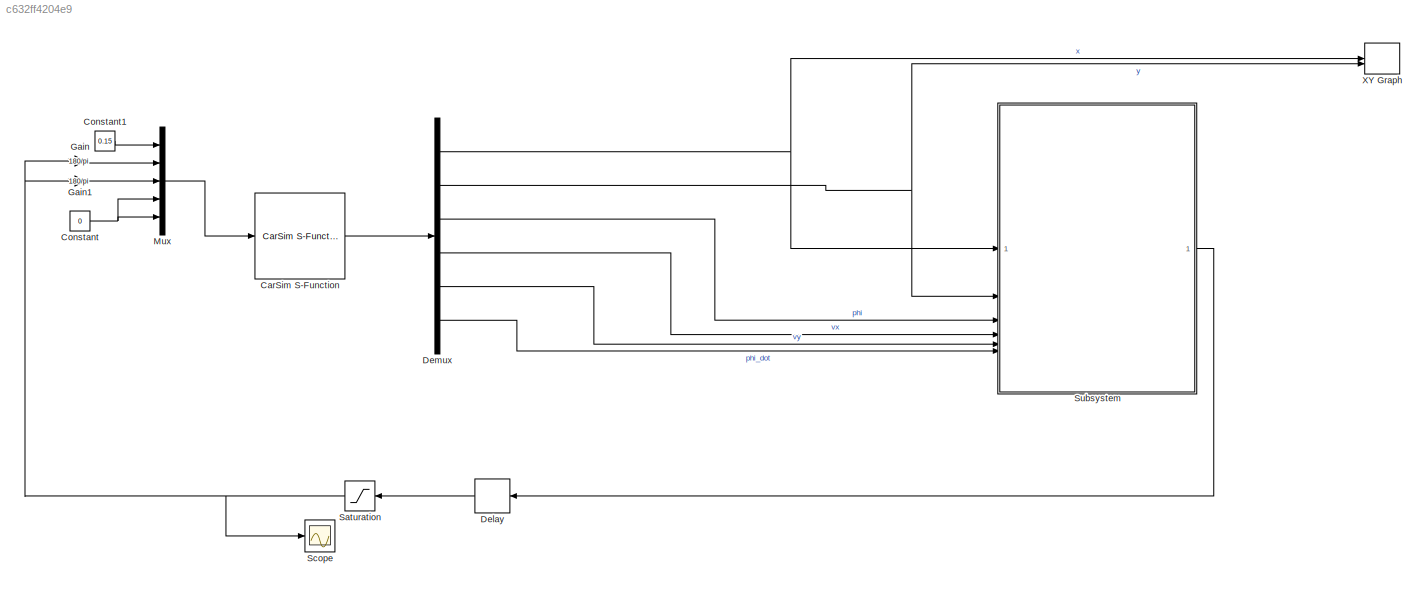
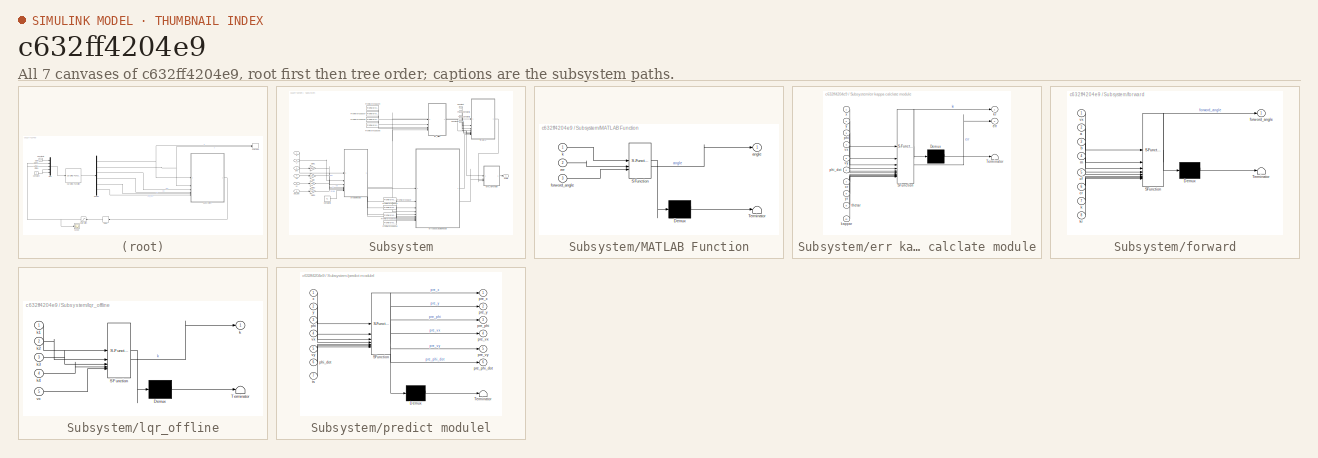
[diagram: thumbnail index - all 7 canvases of the model, root first then tree order]
MODEL slx_c632ff4204e9
KIND model
CONFIG AbsTol = auto
CONFIG EnableMultiTasking = off
CONFIG FixedStep = auto
CONFIG MaxStep = auto
CONFIG MinStep = auto
CONFIG RelTol = 1e-3
CONFIG SampleTimeConstraint = Unconstrained
CONFIG SolverName = VariableStepAuto
CONFIG StartTime = 0.0
CONFIG StopTime = 50
BLOCK [Reference] CarSim S-Function  REF=Solver_SF/CarSim S-Function
  Priority = 1
  SourceBlock = Solver_SF/CarSim S-Function
  SourceProductName = CarSim S-Function
  SourceType = Vehicle math model library
BLOCK [Constant] Constant
  Value = 0
BLOCK [Constant] Constant1
  Value = 0.15
BLOCK [Delay] Delay
  DelayLength = 1
  InputPortMap = u0
BLOCK [Demux] Demux
  Outputs = 6
BLOCK [Gain] Gain
  Gain = 180/pi
BLOCK [Gain] Gain1
  Gain = 180/pi
BLOCK [Mux] Mux
  DisplayOption = bar
  Inputs = 5
BLOCK [Saturate] Saturation
  LowerLimit = -1
  UpperLimit = 1
BLOCK [Scope] Scope
  Floating = off
  NumInputPorts = 1
  ScopeSpecificationString = Simulink.scopes.TimeScopeBlockCfg('CurrentConfiguration', extmgr.ConfigurationSet(extmgr.Configuration('Core','General UI',true),extmgr.Configuration('Core','Source UI',true),extmgr.Configuration('Sources','WiredSimulink',true),extmgr.Configuration('Visuals','Time Domain',true,'SerializedDisplays',{struct('MinYLimReal','-3.64611','MaxYLimReal','26.06854','YLabelReal','','MinYLimMag','0.00000','Max...<+1442ch>
BLOCK [SubSystem] Subsystem
BLOCK [Constant] Subsystem/Constant
  Value = 1.015
BLOCK [Constant] Subsystem/Constant1
  Value = 2.91-1.015
BLOCK [Constant] Subsystem/Constant2
  Value = 1447.2
BLOCK [Constant] Subsystem/Constant3
  Value = 0.1
BLOCK [Constant] Subsystem/Constant4
  Value = -110000
BLOCK [FromWorkspace] Subsystem/From Workspace
  VariableName = xr
BLOCK [FromWorkspace] Subsystem/From Workspace1
  VariableName = yr
BLOCK [FromWorkspace] Subsystem/From Workspace2
  VariableName = kappar
BLOCK [FromWorkspace] Subsystem/From Workspace3
  VariableName = thetar
BLOCK [FromWorkspace] Subsystem/From Workspace4
  VariableName = k1
BLOCK [FromWorkspace] Subsystem/From Workspace5
  VariableName = k4
BLOCK [FromWorkspace] Subsystem/From Workspace6
  VariableName = k3
BLOCK [FromWorkspace] Subsystem/From Workspace7
  VariableName = k2
BLOCK [Gain] Subsystem/Gain
  Gain = 1/3.6
BLOCK [Gain] Subsystem/Gain1
  Gain = pi/180
BLOCK [Gain] Subsystem/Gain2
  Gain = 1/3.6
BLOCK [Gain] Subsystem/Gain3
  Gain = 1/3.6
BLOCK [SubSystem] Subsystem/MATLAB Function
  ErrorFcn = Stateflow.Translate.translate
  PermitHierarchicalResolution = ExplicitOnly
  SFBlockType = MATLAB Function
  TreatAsAtomicUnit = on
BLOCK [Demux] Subsystem/MATLAB Function/ Demux 
  Outputs = 1
BLOCK [S-Function] Subsystem/MATLAB Function/ SFunction 
  EnableBusSupport = on
  FunctionName = sf_sfun
  PortCounts = [3 2]
  SFcnIsStateOwnerBlock = off
  SFunctionDeploymentMode = off
  Tag = Stateflow S-Function 5
BLOCK [Terminator] Subsystem/MATLAB Function/ Terminator 
BLOCK [Outport] Subsystem/MATLAB Function/angle
BLOCK [Inport] Subsystem/MATLAB Function/err
  Port = 2
BLOCK [Inport] Subsystem/MATLAB Function/forword_angle
  Port = 3
BLOCK [Inport] Subsystem/MATLAB Function/k
BLOCK [Outport] Subsystem/angle
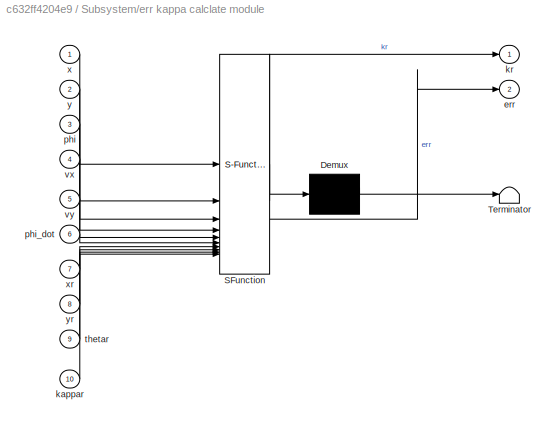
BLOCK [SubSystem] Subsystem/err kappa calclate module
  ErrorFcn = Stateflow.Translate.translate
  PermitHierarchicalResolution = ExplicitOnly
  SFBlockType = MATLAB Function
  TreatAsAtomicUnit = on
BLOCK [Demux] Subsystem/err kappa calclate module/ Demux 
  Outputs = 1
BLOCK [S-Function] Subsystem/err kappa calclate module/ SFunction 
  EnableBusSupport = on
  FunctionName = sf_sfun
  PortCounts = [10 3]
  SFcnIsStateOwnerBlock = off
  SFunctionDeploymentMode = off
  Tag = Stateflow S-Function 1
BLOCK [Terminator] Subsystem/err kappa calclate module/ Terminator 
BLOCK [Outport] Subsystem/err kappa calclate module/err
  Port = 2
BLOCK [Inport] Subsystem/err kappa calclate module/kappar
  Port = 10
BLOCK [Outport] Subsystem/err kappa calclate module/kr
BLOCK [Inport] Subsystem/err kappa calclate module/phi
  Port = 3
BLOCK [Inport] Subsystem/err kappa calclate module/phi_dot
  Port = 6
BLOCK [Inport] Subsystem/err kappa calclate module/thetar
  Port = 9
BLOCK [Inport] Subsystem/err kappa calclate module/vx
  Port = 4
BLOCK [Inport] Subsystem/err kappa calclate module/vy
  Port = 5
BLOCK [Inport] Subsystem/err kappa calclate module/x
BLOCK [Inport] Subsystem/err kappa calclate module/xr
  Port = 7
BLOCK [Inport] Subsystem/err kappa calclate module/y
  Port = 2
BLOCK [Inport] Subsystem/err kappa calclate module/yr
  Port = 8
BLOCK [SubSystem] Subsystem/forward
  ErrorFcn = Stateflow.Translate.translate
  PermitHierarchicalResolution = ExplicitOnly
  SFBlockType = MATLAB Function
  TreatAsAtomicUnit = on
BLOCK [Demux] Subsystem/forward/ Demux 
  Outputs = 1
BLOCK [S-Function] Subsystem/forward/ SFunction 
  EnableBusSupport = on
  FunctionName = sf_sfun
  PortCounts = [8 2]
  SFcnIsStateOwnerBlock = off
  SFunctionDeploymentMode = off
  Tag = Stateflow S-Function 4
BLOCK [Terminator] Subsystem/forward/ Terminator 
BLOCK [Inport] Subsystem/forward/a
  Port = 2
BLOCK [Inport] Subsystem/forward/b
  Port = 3
BLOCK [Inport] Subsystem/forward/cf
  Port = 5
BLOCK [Inport] Subsystem/forward/cr
  Port = 6
BLOCK [Outport] Subsystem/forward/forword_angle
BLOCK [Inport] Subsystem/forward/k
  Port = 7
BLOCK [Inport] Subsystem/forward/kr
  Port = 8
BLOCK [Inport] Subsystem/forward/m
  Port = 4
BLOCK [Inport] Subsystem/forward/vx
BLOCK [SubSystem] Subsystem/lqr_offline
  ErrorFcn = Stateflow.Translate.translate
  PermitHierarchicalResolution = ExplicitOnly
  SFBlockType = MATLAB Function
  TreatAsAtomicUnit = on
BLOCK [Demux] Subsystem/lqr_offline/ Demux 
  Outputs = 1
BLOCK [S-Function] Subsystem/lqr_offline/ SFunction 
  EnableBusSupport = on
  FunctionName = sf_sfun
  PortCounts = [5 2]
  SFcnIsStateOwnerBlock = off
  SFunctionDeploymentMode = off
  Tag = Stateflow S-Function 3
BLOCK [Terminator] Subsystem/lqr_offline/ Terminator 
BLOCK [Outport] Subsystem/lqr_offline/k
BLOCK [Inport] Subsystem/lqr_offline/k1
BLOCK [Inport] Subsystem/lqr_offline/k2
  Port = 2
BLOCK [Inport] Subsystem/lqr_offline/k3
  Port = 3
BLOCK [Inport] Subsystem/lqr_offline/k4
  Port = 4
BLOCK [Inport] Subsystem/lqr_offline/vx
  Port = 5
BLOCK [Inport] Subsystem/phi
  Port = 3
BLOCK [Inport] Subsystem/phi_dot
  Port = 6
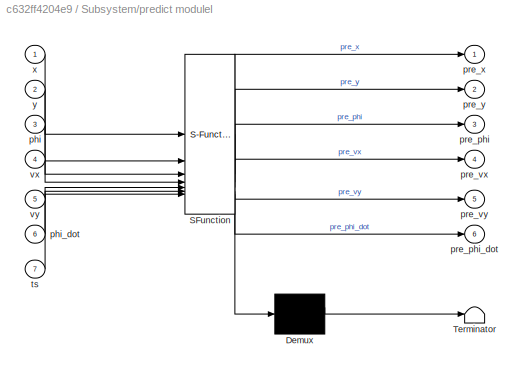
BLOCK [SubSystem] Subsystem/predict modulel
  ErrorFcn = Stateflow.Translate.translate
  PermitHierarchicalResolution = ExplicitOnly
  SFBlockType = MATLAB Function
  TreatAsAtomicUnit = on
BLOCK [Demux] Subsystem/predict modulel/ Demux 
  Outputs = 1
BLOCK [S-Function] Subsystem/predict modulel/ SFunction 
  EnableBusSupport = on
  FunctionName = sf_sfun
  PortCounts = [7 7]
  SFcnIsStateOwnerBlock = off
  SFunctionDeploymentMode = off
  Tag = Stateflow S-Function 2
BLOCK [Terminator] Subsystem/predict modulel/ Terminator 
BLOCK [Inport] Subsystem/predict modulel/phi
  Port = 3
BLOCK [Inport] Subsystem/predict modulel/phi_dot
  Port = 6
BLOCK [Outport] Subsystem/predict modulel/pre_phi
  Port = 3
BLOCK [Outport] Subsystem/predict modulel/pre_phi_dot
  Port = 6
BLOCK [Outport] Subsystem/predict modulel/pre_vx
  Port = 4
BLOCK [Outport] Subsystem/predict modulel/pre_vy
  Port = 5
BLOCK [Outport] Subsystem/predict modulel/pre_x
BLOCK [Outport] Subsystem/predict modulel/pre_y
  Port = 2
BLOCK [Inport] Subsystem/predict modulel/ts
  Port = 7
BLOCK [Inport] Subsystem/predict modulel/vx
  Port = 4
BLOCK [Inport] Subsystem/predict modulel/vy
  Port = 5
BLOCK [Inport] Subsystem/predict modulel/x
BLOCK [Inport] Subsystem/predict modulel/y
  Port = 2
BLOCK [Inport] Subsystem/vx
  Port = 4
BLOCK [Inport] Subsystem/vy
  Port = 5
BLOCK [Inport] Subsystem/x
BLOCK [Inport] Subsystem/y
  Port = 2
BLOCK [Record] XY Graph
  CompatibilityTag = XY
  FileSettingsInternal = {"entries":[{"content":{"excelSettings":{"content":{},"type":"Streamout.ExcelSettings"}},"type":"Streamout.FileSettingStorage","uuid":""}],"packageUris":["http:\/\/schema.mathworks.com\/mf0\/streamout_blocks\/R2020a"],"version":"1.0"}
  Layout = [1 1]
  SignalsInternal = {"entries":[{"content":{"signals":[{"content":{"blockPath":[],"dimensions":[1],"domain":"","lineColor":"#a2142f","plots":[ 1 ],"port":1,"sid":[""],"signalID":1,"signalName":"x"},"type":"RecordBlkView.Signal","uuid":""},{"content":{"blockPath":[],"dimensions":[1],"domain":"","lineColor":"#139fff","plots":[ 1 ],"port":2,"sid":[""],"signalID":2,"signalName":"y"},"type":"RecordBlkView.Signal","uuid":"...<+148ch>
  VisualizationBindings = {"xyplotplugin":{"info":[{"series":[{"bindingParametersList":[{"parameter":"X-Axis","signalID":1,"signalName":"x"},{"parameter":"Y-Axis","signalID":2,"signalName":"y"}],"seriesID":0}],"subplotID":1}]}}
LINE CarSim S-Function:1 -> Demux:1
LINE Constant1:1 -> Mux:1
NET Constant:1 -> Mux:4, Mux:5
LINE Delay:1 -> Saturation:1
NET Demux:1 -> Subsystem:1, XY Graph:1
NET Demux:2 -> Subsystem:2, XY Graph:2
LINE Demux:3 -> Subsystem:3
LINE Demux:4 -> Subsystem:4
LINE Demux:5 -> Subsystem:5
LINE Demux:6 -> Subsystem:6
LINE Gain1:1 -> Mux:3
LINE Gain:1 -> Mux:2
LINE Mux:1 -> CarSim S-Function:1
NET Saturation:1 -> Gain1:1, Gain:1, Scope:1
LINE Subsystem/Constant1:1 -> Subsystem/forward:3
LINE Subsystem/Constant2:1 -> Subsystem/forward:4
LINE Subsystem/Constant3:1 -> Subsystem/predict modulel:7
NET Subsystem/Constant4:1 -> Subsystem/forward:5, Subsystem/forward:6
LINE Subsystem/Constant:1 -> Subsystem/forward:2
LINE Subsystem/From Workspace1:1 -> Subsystem/err kappa calclate module:8
LINE Subsystem/From Workspace2:1 -> Subsystem/err kappa calclate module:10
LINE Subsystem/From Workspace3:1 -> Subsystem/err kappa calclate module:9
LINE Subsystem/From Workspace4:1 -> Subsystem/lqr_offline:1
LINE Subsystem/From Workspace5:1 -> Subsystem/lqr_offline:4
LINE Subsystem/From Workspace6:1 -> Subsystem/lqr_offline:3
LINE Subsystem/From Workspace7:1 -> Subsystem/lqr_offline:2
LINE Subsystem/From Workspace:1 -> Subsystem/err kappa calclate module:7
LINE Subsystem/Gain1:1 -> Subsystem/predict modulel:3
LINE Subsystem/Gain2:1 -> Subsystem/predict modulel:5
LINE Subsystem/Gain3:1 -> Subsystem/predict modulel:6
LINE Subsystem/Gain:1 -> Subsystem/predict modulel:4
LINE Subsystem/MATLAB Function:1 -> Subsystem/angle:1
LINE Subsystem/err kappa calclate module:1 -> Subsystem/forward:8
LINE Subsystem/err kappa calclate module:2 -> Subsystem/MATLAB Function:2
LINE Subsystem/forward:1 -> Subsystem/MATLAB Function:3
NET Subsystem/lqr_offline:1 -> Subsystem/MATLAB Function:1, Subsystem/forward:7
LINE Subsystem/phi:1 -> Subsystem/Gain1:1
LINE Subsystem/phi_dot:1 -> Subsystem/Gain3:1
LINE Subsystem/predict modulel:1 -> Subsystem/err kappa calclate module:1
LINE Subsystem/predict modulel:2 -> Subsystem/err kappa calclate module:2
LINE Subsystem/predict modulel:3 -> Subsystem/err kappa calclate module:3
NET Subsystem/predict modulel:4 -> Subsystem/err kappa calclate module:4, Subsystem/forward:1, Subsystem/lqr_offline:5
LINE Subsystem/predict modulel:5 -> Subsystem/err kappa calclate module:5
LINE Subsystem/predict modulel:6 -> Subsystem/err kappa calclate module:6
LINE Subsystem/vx:1 -> Subsystem/Gain:1
LINE Subsystem/vy:1 -> Subsystem/Gain2:1
LINE Subsystem/x:1 -> Subsystem/predict modulel:1
LINE Subsystem/y:1 -> Subsystem/predict modulel:2
LINE Subsystem:1 -> Delay:1
note: NET lines group one-source signal fan-out (src -> all destinations, sorted); 1:1 wires keep LINE
CHART Subsystem/err kappa calclate module states=1 transitions=1
  STATE_LABEL 'eML_blk_kernel()'
  STATE_LABEL "SCRIPT:\nfunction [kr,err] = fcn(x,y,phi,vx,vy,phi_dot,xr,yr,thetar,kappar)\nn=length(xr);\nd_min=(x-xr(1))^2+(y-yr(1))^2;\nmin=1;\nfor i=1:n\n    d=(x-xr(i))^2+(y-yr(i))^2;\n    if d<d_min\n        d_min=d;\n        min=i;\n    end\nend\ndmin=min;\ntor=[cos(thetar(dmin));sin(thetar(dmin))];\nnor=[-sin(thetar(dmin));cos(thetar(dmin))];\nd_err=[x-xr(dmin);y-yr(dmin)];\ned=nor'*d_err;\nes=tor'*d_err;\n%projection_poi...<+427ch>"
CHART Subsystem/predict modulel states=1 transitions=1
  STATE_LABEL 'eML_blk_kernel()'
  STATE_LABEL 'SCRIPT:\nfunction [pre_x,pre_y,pre_phi,pre_vx,pre_vy,pre_phi_dot]  = fcn(x,y,phi,vx,vy,phi_dot,ts)\npre_x=x+vx*ts*cos(phi)-vy*ts*sin(phi);\npre_y=y+vy*ts*cos(phi)+vx*ts*sin(phi);\npre_phi=phi+phi_dot*ts;\npre_vx=vx;\npre_vy=vy;\npre_phi_dot=phi_dot;\nend\n'
CHART Subsystem/lqr_offline states=1 transitions=1
  STATE_LABEL 'eML_blk_kernel()'
  STATE_LABEL 'SCRIPT:\nfunction k = fcn(k1,k2,k3,k4,vx)\nif abs(vx)<0.01\n    k=[0,0,0,0];\nelse\n    index=round(vx/0.01);\n    k=[k1(index),k2(index),k3(index),k4(index)];\nend\nend\n    \n'
CHART Subsystem/forward states=1 transitions=1
  STATE_LABEL 'eML_blk_kernel()'
  STATE_LABEL 'SCRIPT:\nfunction forword_angle = fcn(vx,a,b,m,cf,cr,k,kr)\n   forword_angle=kr*(a+b-b*k(3)-(m*vx*vx/(a+b))*((b/cf)+(a/cr)*k(3)-(a/cr)));\nend\n'
CHART Subsystem/MATLAB Function states=1 transitions=1
  STATE_LABEL 'eML_blk_kernel()'
  STATE_LABEL 'SCRIPT:\nfunction angle = fcn(k,err,forword_angle)\n\nangle=-k*err+forword_angle;\nend'
CHART  states=0 transitions=0
CHART  states=0 transitions=0
CHART  states=0 transitions=0
CHART  states=0 transitions=0
CHART  states=0 transitions=0
